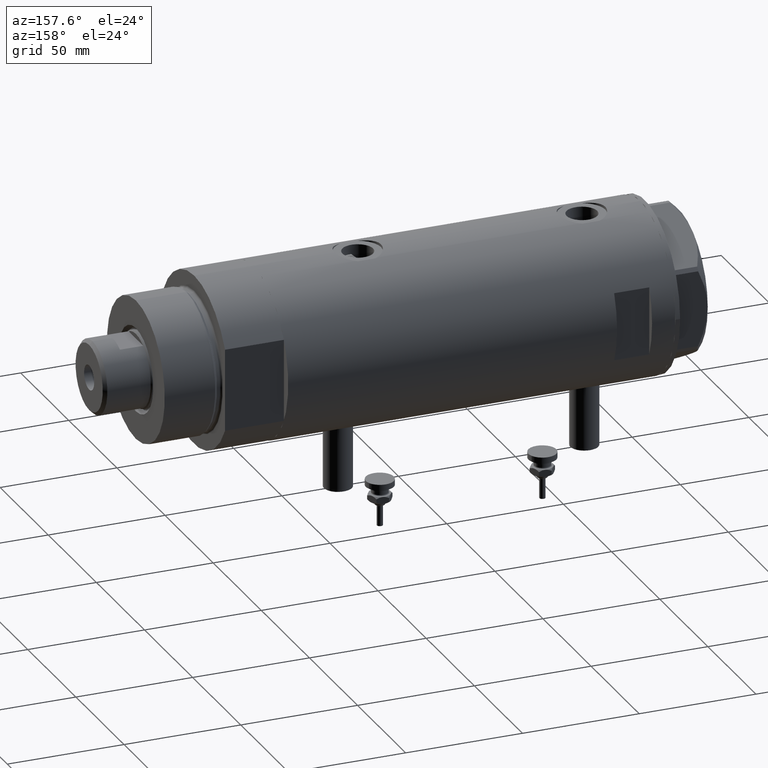
[diagram: clean part render]
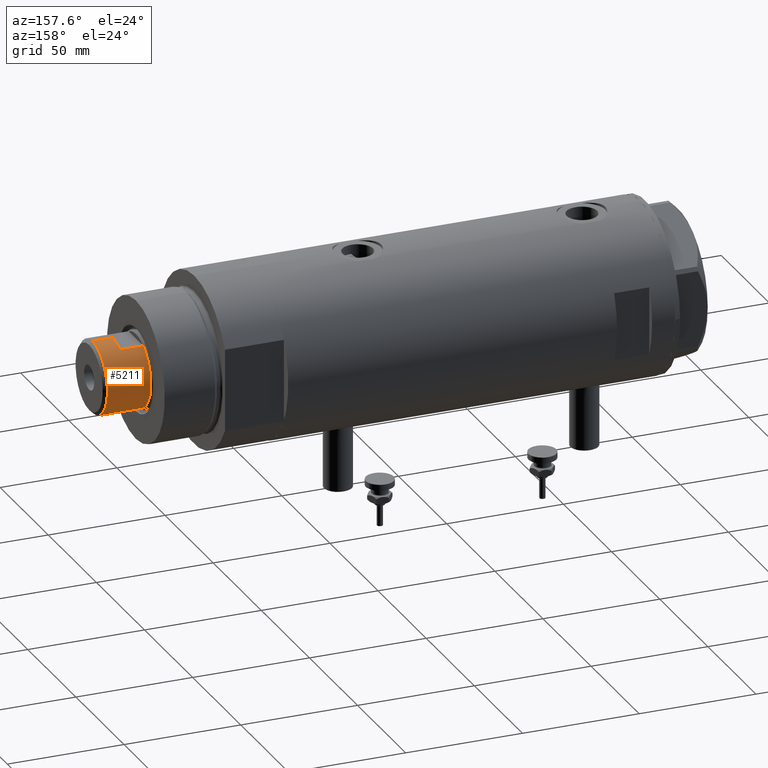
[diagram: same view with one face highlighted and labeled with its STEP entity id]
A machine part, auxiliary view. The second image highlights one B-rep face of the part: STEP entity #5211.
In plain terms, the highlighted cylindrical surface (partial cylindrical patch) has radius 15.5 mm, axis along (-1, -0, 0).
Its self-contained STEP definition (entity closure, byte-faithful):
#35 = VERTEX_POINT ( 'NONE', #1030 ) ;
#203 = DIRECTION ( 'NONE',  ( -0.000000000000000000, -0.000000000000000000, -1.000000000000000000 ) ) ;
#348 = CARTESIAN_POINT ( 'NONE',  ( -15.49999999999999822, 0.000000000000000000, 200.0000000000000000 ) ) ;
#529 = ORIENTED_EDGE ( 'NONE', *, *, #2541, .T. ) ;
#609 = EDGE_CURVE ( 'NONE', #4119, #3221, #4869, .T. ) ;
#659 = LINE ( 'NONE', #4339, #4423 ) ;
#824 = DIRECTION ( 'NONE',  ( 1.000000000000000000, 0.000000000000000000, 0.000000000000000000 ) ) ;
#1030 = CARTESIAN_POINT ( 'NONE',  ( -15.49999999999999822, 0.000000000000000000, 208.5999999999999659 ) ) ;
#1143 = AXIS2_PLACEMENT_3D ( 'NONE', #5332, #1206, #3990 ) ;
#1150 = AXIS2_PLACEMENT_3D ( 'NONE', #2631, #4459, #2179 ) ;
#1194 = CARTESIAN_POINT ( 'NONE',  ( 15.50000000000000178, 1.898202538678397557E-15, 200.0000000000000000 ) ) ;
#1206 = DIRECTION ( 'NONE',  ( -0.000000000000000000, -0.000000000000000000, -1.000000000000000000 ) ) ;
#1219 = ORIENTED_EDGE ( 'NONE', *, *, #5548, .T. ) ;
#1449 = CIRCLE ( 'NONE', #1150, 15.49999999999995737 ) ;
#1551 = DIRECTION ( 'NONE',  ( 1.000000000000000000, 0.000000000000000000, 0.000000000000000000 ) ) ;
#1570 = EDGE_CURVE ( 'NONE', #3576, #2996, #5373, .T. ) ;
#1760 = FACE_OUTER_BOUND ( 'NONE', #4653, .T. ) ;
#1788 = CARTESIAN_POINT ( 'NONE',  ( 15.49999999999999822, 1.898202538678397163E-15, 200.0000000000000000 ) ) ;
#1896 = AXIS2_PLACEMENT_3D ( 'NONE', #5667, #2458, #1551 ) ;
#2063 = DIRECTION ( 'NONE',  ( -0.000000000000000000, -0.000000000000000000, -1.000000000000000000 ) ) ;
#2066 = ORIENTED_EDGE ( 'NONE', *, *, #4017, .T. ) ;
#2179 = DIRECTION ( 'NONE',  ( 1.000000000000000000, 0.000000000000000000, 0.000000000000000000 ) ) ;
#2296 = VECTOR ( 'NONE', #4828, 1000.000000000000000 ) ;
#2407 = VERTEX_POINT ( 'NONE', #3503 ) ;
#2458 = DIRECTION ( 'NONE',  ( 0.000000000000000000, 0.000000000000000000, -1.000000000000000000 ) ) ;
#2541 = EDGE_CURVE ( 'NONE', #35, #3269, #5349, .T. ) ;
#2557 = ORIENTED_EDGE ( 'NONE', *, *, #5329, .T. ) ;
#2631 = CARTESIAN_POINT ( 'NONE',  ( 0.000000000000000000, 0.000000000000000000, 190.0000000000000000 ) ) ;
#2786 = ORIENTED_EDGE ( 'NONE', *, *, #4266, .T. ) ;
#2822 = VERTEX_POINT ( 'NONE', #3951 ) ;
#2831 = EDGE_CURVE ( 'NONE', #35, #2407, #3040, .T. ) ;
#2932 = AXIS2_PLACEMENT_3D ( 'NONE', #4969, #3648, #824 ) ;
#2996 = VERTEX_POINT ( 'NONE', #5495 ) ;
#3040 = LINE ( 'NONE', #348, #2296 ) ;
#3221 = VERTEX_POINT ( 'NONE', #4418 ) ;
#3269 = VERTEX_POINT ( 'NONE', #4592 ) ;
#3282 = DIRECTION ( 'NONE',  ( 0.000000000000000000, 0.000000000000000000, 1.000000000000000000 ) ) ;
#3503 = CARTESIAN_POINT ( 'NONE',  ( -15.50000000000000178, 0.000000000000000000, 200.0000000000000000 ) ) ;
#3576 = VERTEX_POINT ( 'NONE', #4877 ) ;
#3581 = CYLINDRICAL_SURFACE ( 'NONE', #1143, 15.49999999999999822 ) ;
#3648 = DIRECTION ( 'NONE',  ( 0.000000000000000000, 0.000000000000000000, 1.000000000000000000 ) ) ;
#3763 = CARTESIAN_POINT ( 'NONE',  ( 0.000000000000000000, 0.000000000000000000, 200.0000000000000000 ) ) ;
#3874 = ORIENTED_EDGE ( 'NONE', *, *, #2831, .F. ) ;
#3902 = CARTESIAN_POINT ( 'NONE',  ( -13.48630416385452868, 7.639999999999998792, 200.0000000000000000 ) ) ;
#3951 = CARTESIAN_POINT ( 'NONE',  ( 13.48630416385452868, 7.639999999999997904, 190.0000000000000000 ) ) ;
#3990 = DIRECTION ( 'NONE',  ( -1.000000000000000000, 0.000000000000000000, 0.000000000000000000 ) ) ;
#4017 = EDGE_CURVE ( 'NONE', #3576, #2407, #4925, .T. ) ;
#4119 = VERTEX_POINT ( 'NONE', #1194 ) ;
#4192 = LINE ( 'NONE', #1788, #5190 ) ;
#4196 = VECTOR ( 'NONE', #2063, 1000.000000000000000 ) ;
#4266 = EDGE_CURVE ( 'NONE', #2822, #2996, #1449, .T. ) ;
#4339 = CARTESIAN_POINT ( 'NONE',  ( 13.48630416385452868, 7.639999999999997904, 200.0000000000000000 ) ) ;
#4418 = CARTESIAN_POINT ( 'NONE',  ( 13.48630416385452868, 7.639999999999997904, 200.0000000000000000 ) ) ;
#4423 = VECTOR ( 'NONE', #203, 1000.000000000000000 ) ;
#4459 = DIRECTION ( 'NONE',  ( 0.000000000000000000, 0.000000000000000000, 1.000000000000000000 ) ) ;
#4592 = CARTESIAN_POINT ( 'NONE',  ( 15.49999999999999822, 1.898202538678397163E-15, 208.5999999999999659 ) ) ;
#4653 = EDGE_LOOP ( 'NONE', ( #529, #2557, #5653, #1219, #2786, #4956, #2066, #3874 ) ) ;
#4763 = DIRECTION ( 'NONE',  ( 1.000000000000000000, 0.000000000000000000, 0.000000000000000000 ) ) ;
#4828 = DIRECTION ( 'NONE',  ( -0.000000000000000000, -0.000000000000000000, -1.000000000000000000 ) ) ;
#4869 = CIRCLE ( 'NONE', #2932, 15.50000000000000000 ) ;
#4877 = CARTESIAN_POINT ( 'NONE',  ( -13.48630416385452868, 7.639999999999998792, 200.0000000000000000 ) ) ;
#4925 = CIRCLE ( 'NONE', #5197, 15.50000000000000000 ) ;
#4956 = ORIENTED_EDGE ( 'NONE', *, *, #1570, .F. ) ;
#4969 = CARTESIAN_POINT ( 'NONE',  ( 0.000000000000000000, 0.000000000000000000, 200.0000000000000000 ) ) ;
#5019 = DIRECTION ( 'NONE',  ( -0.000000000000000000, -0.000000000000000000, -1.000000000000000000 ) ) ;
#5190 = VECTOR ( 'NONE', #5019, 1000.000000000000000 ) ;
#5197 = AXIS2_PLACEMENT_3D ( 'NONE', #3763, #3282, #4763 ) ;
#5211 = ADVANCED_FACE ( 'NONE', ( #1760 ), #3581, .T. ) ;
#5329 = EDGE_CURVE ( 'NONE', #3269, #4119, #4192, .T. ) ;
#5332 = CARTESIAN_POINT ( 'NONE',  ( 0.000000000000000000, 0.000000000000000000, 200.0000000000000000 ) ) ;
#5349 = CIRCLE ( 'NONE', #1896, 15.49999999999999822 ) ;
#5373 = LINE ( 'NONE', #3902, #4196 ) ;
#5495 = CARTESIAN_POINT ( 'NONE',  ( -13.48630416385452513, 7.639999999999917968, 190.0000000000000000 ) ) ;
#5548 = EDGE_CURVE ( 'NONE', #3221, #2822, #659, .T. ) ;
#5653 = ORIENTED_EDGE ( 'NONE', *, *, #609, .T. ) ;
#5667 = CARTESIAN_POINT ( 'NONE',  ( 0.000000000000000000, 0.000000000000000000, 208.5999999999999659 ) ) ;